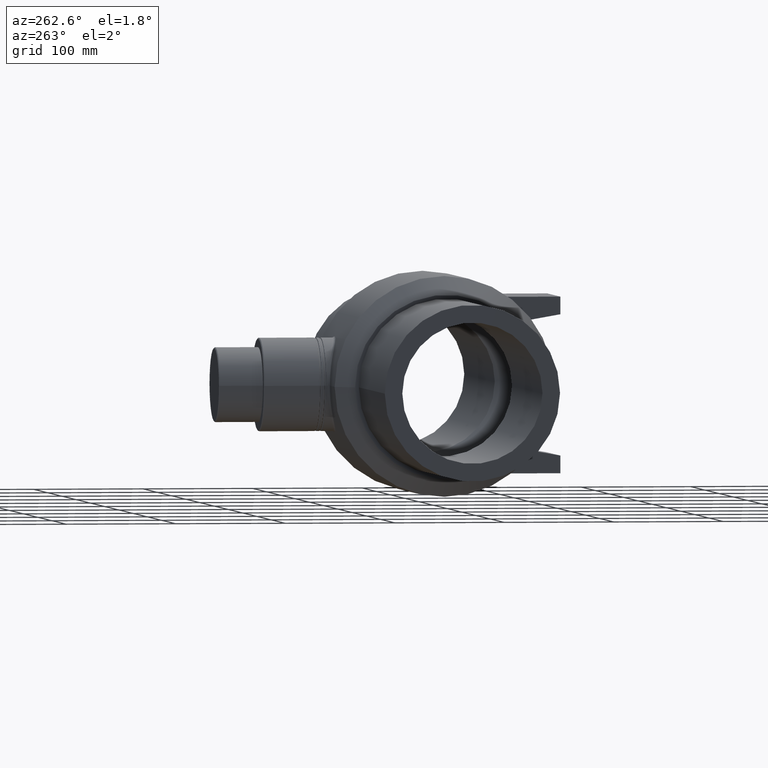
[diagram: clean part render]
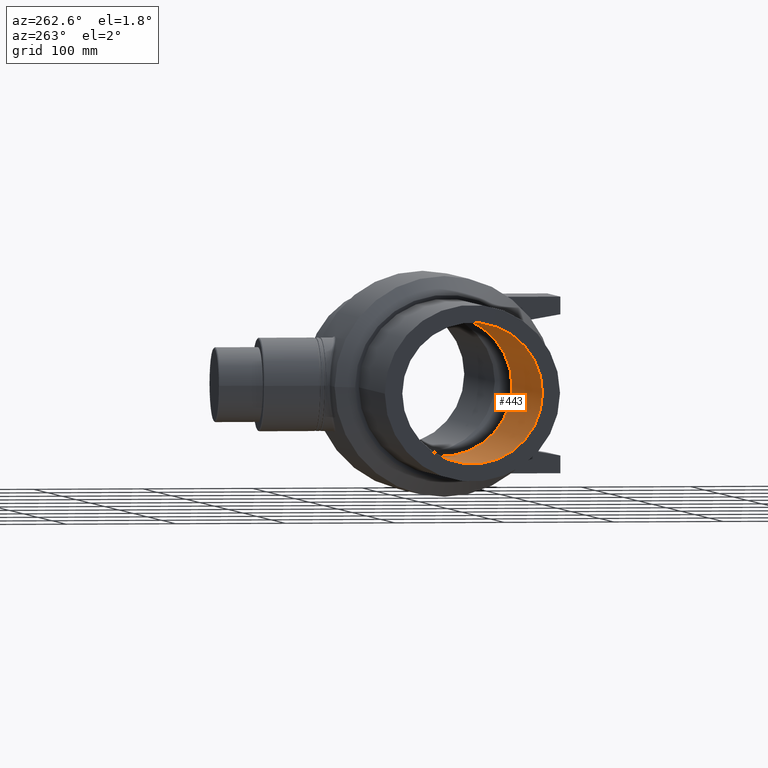
[diagram: same view with one face highlighted and labeled with its STEP entity id]
A machine part, auxiliary view. The second image highlights one B-rep face of the part: STEP entity #443.
In plain terms, the highlighted cylindrical surface (bore or boss wall) has radius 64 mm, axis along (1, 0, 0).
Its self-contained STEP definition (entity closure, byte-faithful):
#100=FACE_BOUND('',#196,.T.);
#110=CYLINDRICAL_SURFACE('',#501,64.);
#141=FACE_OUTER_BOUND('',#195,.T.);
#195=EDGE_LOOP('',(#406));
#196=EDGE_LOOP('',(#407));
#226=CIRCLE('',#500,64.);
#227=CIRCLE('',#502,64.);
#265=VERTEX_POINT('',#928);
#266=VERTEX_POINT('',#931);
#313=EDGE_CURVE('',#265,#265,#226,.T.);
#314=EDGE_CURVE('',#266,#266,#227,.T.);
#406=ORIENTED_EDGE('',*,*,#314,.F.);
#407=ORIENTED_EDGE('',*,*,#313,.T.);
#443=ADVANCED_FACE('',(#141,#100),#110,.F.);
#500=AXIS2_PLACEMENT_3D('',#929,#632,#633);
#501=AXIS2_PLACEMENT_3D('',#930,#634,#635);
#502=AXIS2_PLACEMENT_3D('',#932,#636,#637);
#632=DIRECTION('center_axis',(1.,0.,0.));
#633=DIRECTION('ref_axis',(0.,0.,-1.));
#634=DIRECTION('center_axis',(1.,0.,0.));
#635=DIRECTION('ref_axis',(0.,1.,0.));
#636=DIRECTION('center_axis',(1.,0.,0.));
#637=DIRECTION('ref_axis',(0.,0.,-1.));
#928=CARTESIAN_POINT('',(-60.398675482166,64.,0.));
#929=CARTESIAN_POINT('Origin',(-60.398675482166,0.,0.));
#930=CARTESIAN_POINT('Origin',(-167.699337741083,0.,0.));
#931=CARTESIAN_POINT('',(-275.,64.,0.));
#932=CARTESIAN_POINT('Origin',(-275.,0.,0.));